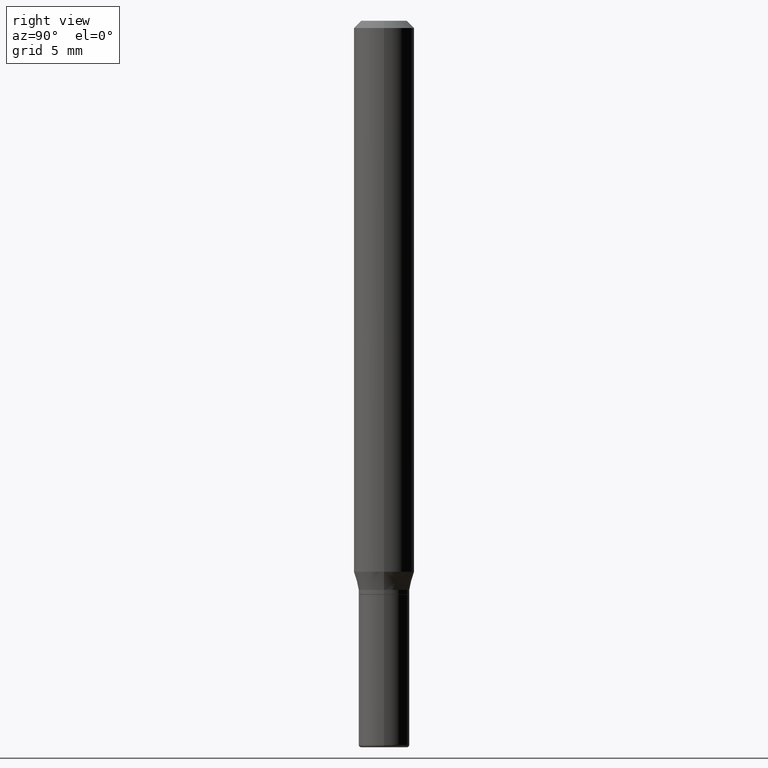
[diagram: clean part render]
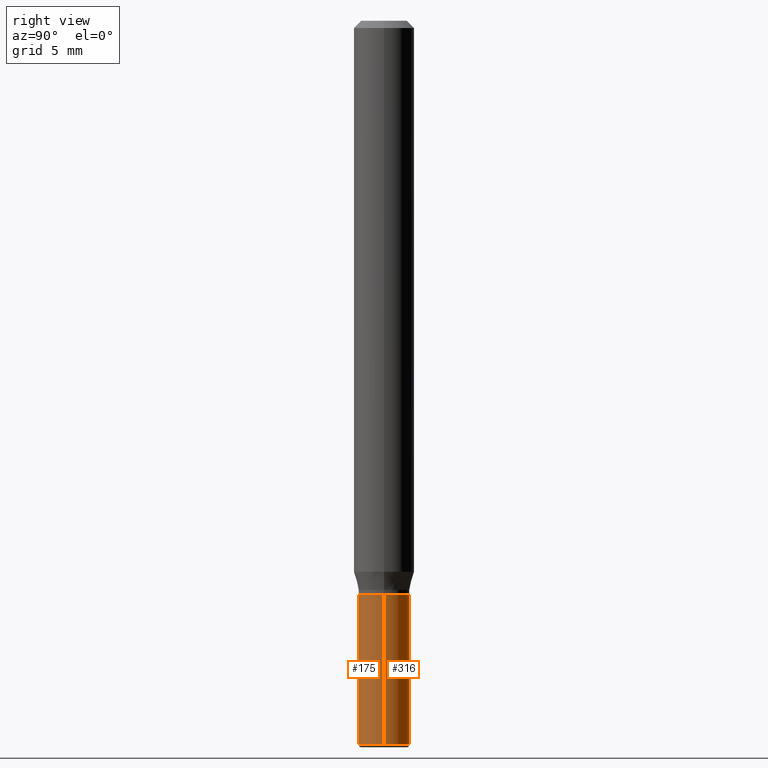
[diagram: same view with one multi-face feature highlighted, each face labeled with its STEP entity id]
A machine part, right view. The highlighted faces form ONE feature: a constant-radius fillet chain: 2 tangent blend faces with common blend radius 1.3335 mm. The faces share edges in the B-rep.
Their STEP definitions:
[1] entity #316 (Cylinder):
#4 = AXIS2_PLACEMENT_3D ( 'NONE', #452, #369, #244 ) ;
#22 = VECTOR ( 'NONE', #246, 39.37007874015748143 ) ;
#41 = CARTESIAN_POINT ( 'NONE',  ( 0.05249999999999999806, -4.504010927107656701E-15, -1.185000000000000053 ) ) ;
#43 = ORIENTED_EDGE ( 'NONE', *, *, #405, .F. ) ;
#109 = CIRCLE ( 'NONE', #300, 0.05250000000000017153 ) ;
#129 = LINE ( 'NONE', #287, #22 ) ;
#131 = CARTESIAN_POINT ( 'NONE',  ( -0.05250000000000017153, -4.305550057775760834E-15, -1.495000000000000107 ) ) ;
#140 = EDGE_CURVE ( 'NONE', #470, #503, #109, .T. ) ;
#143 = AXIS2_PLACEMENT_3D ( 'NONE', #299, #380, #451 ) ;
#164 = CYLINDRICAL_SURFACE ( 'NONE', #143, 0.05250000000000008826 ) ;
#185 = ORIENTED_EDGE ( 'NONE', *, *, #140, .T. ) ;
#205 = ORIENTED_EDGE ( 'NONE', *, *, #350, .T. ) ;
#221 = DIRECTION ( 'NONE',  ( 1.000000000000000000, -6.982962677686263555E-15, 0.000000000000000000 ) ) ;
#222 = VERTEX_POINT ( 'NONE', #434 ) ;
#230 = ORIENTED_EDGE ( 'NONE', *, *, #499, .F. ) ;
#244 = DIRECTION ( 'NONE',  ( 1.000000000000000000, -6.982962677686258822E-15, 0.000000000000000000 ) ) ;
#246 = DIRECTION ( 'NONE',  ( -2.445468806185136877E-29, 3.491481338843145188E-15, 1.000000000000000000 ) ) ;
#252 = EDGE_LOOP ( 'NONE', ( #185, #205, #230, #43 ) ) ;
#267 = CARTESIAN_POINT ( 'NONE',  ( 3.655975865246779122E-29, -5.219764601570503141E-15, -1.495000000000000107 ) ) ;
#275 = VECTOR ( 'NONE', #431, 39.37007874015748143 ) ;
#283 = FACE_OUTER_BOUND ( 'NONE', #252, .T. ) ;
#287 = CARTESIAN_POINT ( 'NONE',  ( 0.05250000000000008826, -3.666055405785296038E-16, 2.559992807292870916E-30 ) ) ;
#292 = CIRCLE ( 'NONE', #4, 0.05249999999999999806 ) ;
#299 = CARTESIAN_POINT ( 'NONE',  ( 0.000000000000000000, 0.000000000000000000, 0.000000000000000000 ) ) ;
#300 = AXIS2_PLACEMENT_3D ( 'NONE', #267, #319, #221 ) ;
#316 = ADVANCED_FACE ( 'NONE', ( #283 ), #164, .T. ) ;
#319 = DIRECTION ( 'NONE',  ( -2.445468806185136597E-29, 3.491481338843145583E-15, 1.000000000000000000 ) ) ;
#350 = EDGE_CURVE ( 'NONE', #503, #222, #507, .T. ) ;
#351 = CARTESIAN_POINT ( 'NONE',  ( -0.05250000000000008826, 3.730349362740532247E-16, -2.582440922383829865E-30 ) ) ;
#369 = DIRECTION ( 'NONE',  ( -2.445468806185136597E-29, 3.491481338843145583E-15, 1.000000000000000000 ) ) ;
#371 = CARTESIAN_POINT ( 'NONE',  ( 0.05250000000000017153, -5.586370142149033090E-15, -1.495000000000000107 ) ) ;
#380 = DIRECTION ( 'NONE',  ( -2.445468806185136597E-29, 3.491481338843145583E-15, 1.000000000000000000 ) ) ;
#405 = EDGE_CURVE ( 'NONE', #470, #492, #129, .T. ) ;
#431 = DIRECTION ( 'NONE',  ( -2.445468806185136877E-29, 3.491481338843145188E-15, 1.000000000000000000 ) ) ;
#434 = CARTESIAN_POINT ( 'NONE',  ( -0.05249999999999999806, -4.305550057775762412E-15, -1.185000000000000053 ) ) ;
#451 = DIRECTION ( 'NONE',  ( 1.000000000000000000, -6.982962677686266711E-15, 4.876176775795936353E-29 ) ) ;
#452 = CARTESIAN_POINT ( 'NONE',  ( 2.897880535329386822E-29, -4.137405386529127541E-15, -1.185000000000000053 ) ) ;
#470 = VERTEX_POINT ( 'NONE', #371 ) ;
#492 = VERTEX_POINT ( 'NONE', #41 ) ;
#499 = EDGE_CURVE ( 'NONE', #492, #222, #292, .T. ) ;
#503 = VERTEX_POINT ( 'NONE', #131 ) ;
#507 = LINE ( 'NONE', #351, #275 ) ;
[2] entity #175 (Cylinder):
#22 = VECTOR ( 'NONE', #246, 39.37007874015748143 ) ;
#28 = DIRECTION ( 'NONE',  ( -2.445468806185136597E-29, 3.491481338843145583E-15, 1.000000000000000000 ) ) ;
#32 = AXIS2_PLACEMENT_3D ( 'NONE', #464, #181, #159 ) ;
#41 = CARTESIAN_POINT ( 'NONE',  ( 0.05249999999999999806, -4.504010927107656701E-15, -1.185000000000000053 ) ) ;
#87 = ORIENTED_EDGE ( 'NONE', *, *, #147, .T. ) ;
#129 = LINE ( 'NONE', #287, #22 ) ;
#131 = CARTESIAN_POINT ( 'NONE',  ( -0.05250000000000017153, -4.305550057775760834E-15, -1.495000000000000107 ) ) ;
#147 = EDGE_CURVE ( 'NONE', #503, #470, #454, .T. ) ;
#149 = CYLINDRICAL_SURFACE ( 'NONE', #32, 0.05250000000000008826 ) ;
#159 = DIRECTION ( 'NONE',  ( 1.000000000000000000, -6.982962677686266711E-15, 4.876176775795936353E-29 ) ) ;
#170 = EDGE_LOOP ( 'NONE', ( #312, #87, #397, #289 ) ) ;
#175 = ADVANCED_FACE ( 'NONE', ( #398 ), #149, .T. ) ;
#181 = DIRECTION ( 'NONE',  ( -2.445468806185136597E-29, 3.491481338843145583E-15, 1.000000000000000000 ) ) ;
#190 = CARTESIAN_POINT ( 'NONE',  ( 2.897880535329386822E-29, -4.137405386529127541E-15, -1.185000000000000053 ) ) ;
#193 = AXIS2_PLACEMENT_3D ( 'NONE', #498, #474, #358 ) ;
#222 = VERTEX_POINT ( 'NONE', #434 ) ;
#246 = DIRECTION ( 'NONE',  ( -2.445468806185136877E-29, 3.491481338843145188E-15, 1.000000000000000000 ) ) ;
#275 = VECTOR ( 'NONE', #431, 39.37007874015748143 ) ;
#287 = CARTESIAN_POINT ( 'NONE',  ( 0.05250000000000008826, -3.666055405785296038E-16, 2.559992807292870916E-30 ) ) ;
#289 = ORIENTED_EDGE ( 'NONE', *, *, #329, .F. ) ;
#312 = ORIENTED_EDGE ( 'NONE', *, *, #350, .F. ) ;
#314 = DIRECTION ( 'NONE',  ( 1.000000000000000000, -6.982962677686258822E-15, 0.000000000000000000 ) ) ;
#329 = EDGE_CURVE ( 'NONE', #222, #492, #432, .T. ) ;
#350 = EDGE_CURVE ( 'NONE', #503, #222, #507, .T. ) ;
#351 = CARTESIAN_POINT ( 'NONE',  ( -0.05250000000000008826, 3.730349362740532247E-16, -2.582440922383829865E-30 ) ) ;
#358 = DIRECTION ( 'NONE',  ( 1.000000000000000000, -6.982962677686263555E-15, 0.000000000000000000 ) ) ;
#360 = AXIS2_PLACEMENT_3D ( 'NONE', #190, #28, #314 ) ;
#371 = CARTESIAN_POINT ( 'NONE',  ( 0.05250000000000017153, -5.586370142149033090E-15, -1.495000000000000107 ) ) ;
#397 = ORIENTED_EDGE ( 'NONE', *, *, #405, .T. ) ;
#398 = FACE_OUTER_BOUND ( 'NONE', #170, .T. ) ;
#405 = EDGE_CURVE ( 'NONE', #470, #492, #129, .T. ) ;
#431 = DIRECTION ( 'NONE',  ( -2.445468806185136877E-29, 3.491481338843145188E-15, 1.000000000000000000 ) ) ;
#432 = CIRCLE ( 'NONE', #360, 0.05249999999999999806 ) ;
#434 = CARTESIAN_POINT ( 'NONE',  ( -0.05249999999999999806, -4.305550057775762412E-15, -1.185000000000000053 ) ) ;
#454 = CIRCLE ( 'NONE', #193, 0.05250000000000017153 ) ;
#464 = CARTESIAN_POINT ( 'NONE',  ( 0.000000000000000000, 0.000000000000000000, 0.000000000000000000 ) ) ;
#470 = VERTEX_POINT ( 'NONE', #371 ) ;
#474 = DIRECTION ( 'NONE',  ( -2.445468806185136597E-29, 3.491481338843145583E-15, 1.000000000000000000 ) ) ;
#492 = VERTEX_POINT ( 'NONE', #41 ) ;
#498 = CARTESIAN_POINT ( 'NONE',  ( 3.655975865246779122E-29, -5.219764601570503141E-15, -1.495000000000000107 ) ) ;
#503 = VERTEX_POINT ( 'NONE', #131 ) ;
#507 = LINE ( 'NONE', #351, #275 ) ;